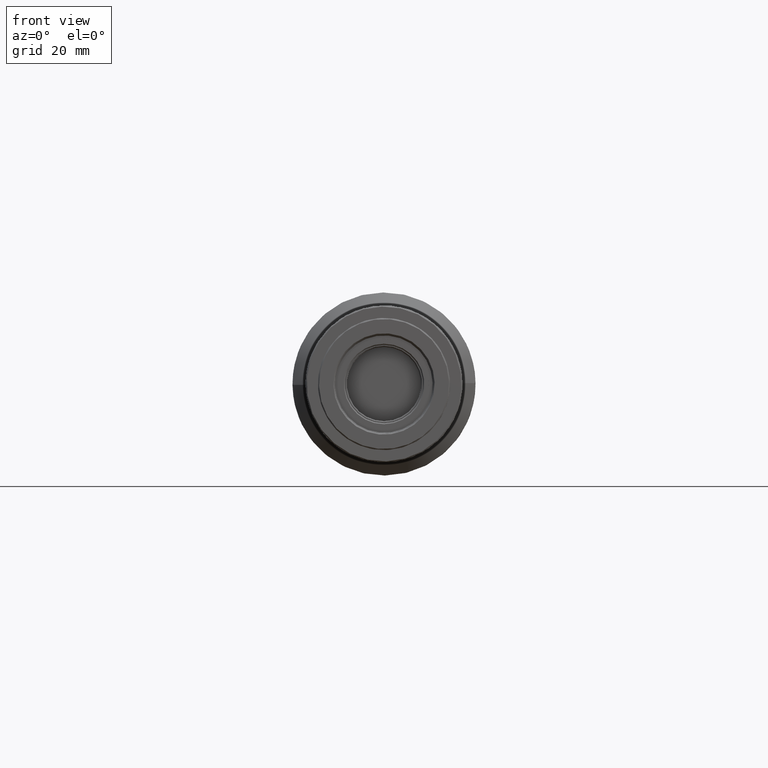
[diagram: clean part render]
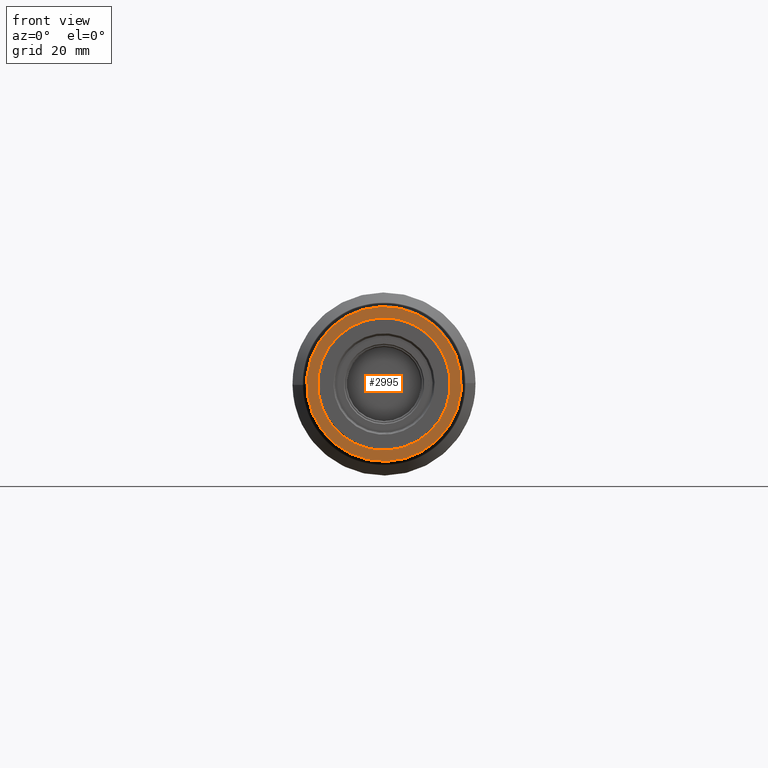
[diagram: same view with one face highlighted and labeled with its STEP entity id]
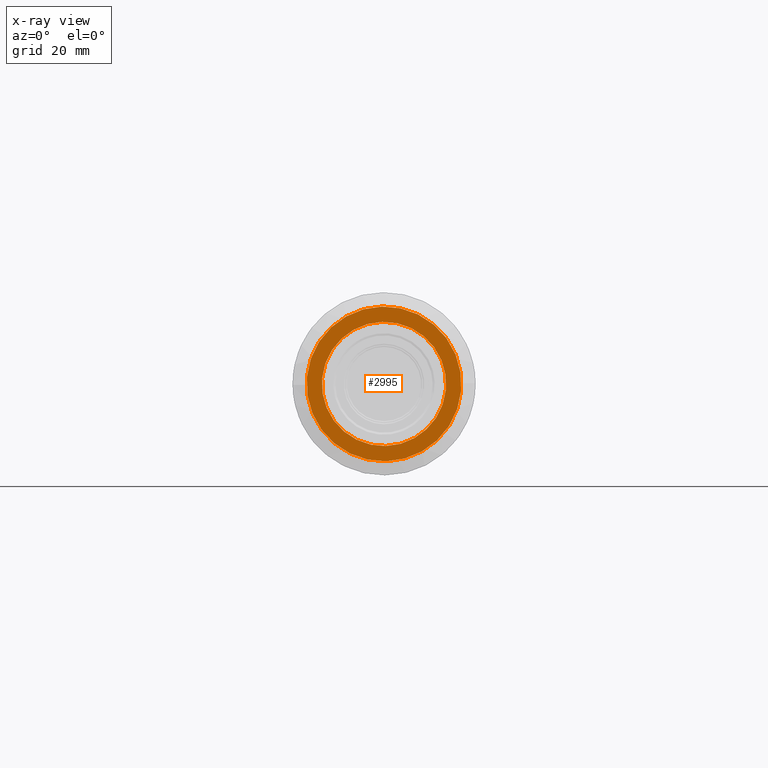
[diagram: x-ray of the same camera — body ghosted, the highlighted face saturated]
A machine part, front view. The second image highlights one B-rep face of the part: STEP entity #2995.
The next image is the same camera in x-ray: the body ghosted, the highlighted face saturated — about 0% of this face is hidden behind the body in this view.
In plain terms, the highlighted planar face has unit normal (0, -1, 0).
Its self-contained STEP definition (entity closure, byte-faithful):
#146 = EDGE_CURVE ( 'NONE', #4155, #3077, #1923, .T. ) ;
#275 = EDGE_LOOP ( 'NONE', ( #3292, #1747 ) ) ;
#300 = PLANE ( 'NONE',  #1401 ) ;
#542 = CARTESIAN_POINT ( 'NONE',  ( 2.342732911129459860E-15, -2.000000000000000000, -2.915018094392330221E-16 ) ) ;
#630 = DIRECTION ( 'NONE',  ( -0.6836430152896298962, 0.000000000000000000, 0.7298165712325959120 ) ) ;
#659 = DIRECTION ( 'NONE',  ( -0.000000000000000000, 1.000000000000000000, -0.000000000000000000 ) ) ;
#810 = EDGE_CURVE ( 'NONE', #3874, #1076, #3191, .T. ) ;
#973 = CARTESIAN_POINT ( 'NONE',  ( -8.121679021640801466, -2.000000000000001776, 8.670220866243239399 ) ) ;
#1076 = VERTEX_POINT ( 'NONE', #2997 ) ;
#1097 = CARTESIAN_POINT ( 'NONE',  ( 2.342732911129459860E-15, -2.000000000000001776, -2.915018094392330221E-16 ) ) ;
#1359 = AXIS2_PLACEMENT_3D ( 'NONE', #1849, #2744, #4483 ) ;
#1401 = AXIS2_PLACEMENT_3D ( 'NONE', #2883, #4626, #3788 ) ;
#1649 = EDGE_LOOP ( 'NONE', ( #1852, #1655 ) ) ;
#1655 = ORIENTED_EDGE ( 'NONE', *, *, #810, .F. ) ;
#1747 = ORIENTED_EDGE ( 'NONE', *, *, #146, .T. ) ;
#1849 = CARTESIAN_POINT ( 'NONE',  ( 2.342732911129459860E-15, -2.000000000000000000, -2.915018094392330221E-16 ) ) ;
#1852 = ORIENTED_EDGE ( 'NONE', *, *, #5209, .F. ) ;
#1923 = CIRCLE ( 'NONE', #2844, 11.88000000000000256 ) ;
#2283 = DIRECTION ( 'NONE',  ( -0.000000000000000000, 1.000000000000000000, 0.000000000000000000 ) ) ;
#2490 = CARTESIAN_POINT ( 'NONE',  ( 2.342732911129459860E-15, -2.000000000000001776, -2.915018094392330221E-16 ) ) ;
#2542 = CARTESIAN_POINT ( 'NONE',  ( 8.121679021640803242, -2.000000000000001776, -8.670220866243239399 ) ) ;
#2744 = DIRECTION ( 'NONE',  ( -0.000000000000000000, 1.000000000000000000, 0.000000000000000000 ) ) ;
#2844 = AXIS2_PLACEMENT_3D ( 'NONE', #1097, #659, #630 ) ;
#2883 = CARTESIAN_POINT ( 'NONE',  ( 10.25464522934445100, -2.000000000000001776, -10.94724856848893957 ) ) ;
#2896 = AXIS2_PLACEMENT_3D ( 'NONE', #542, #2283, #4024 ) ;
#2995 = ADVANCED_FACE ( 'NONE', ( #3311, #3364 ), #300, .T. ) ;
#2997 = CARTESIAN_POINT ( 'NONE',  ( 10.11791662628652588, -2.000000000000000000, -10.80128525424241914 ) ) ;
#3038 = CIRCLE ( 'NONE', #4404, 11.88000000000000256 ) ;
#3077 = VERTEX_POINT ( 'NONE', #973 ) ;
#3191 = CIRCLE ( 'NONE', #1359, 14.79999999999999893 ) ;
#3292 = ORIENTED_EDGE ( 'NONE', *, *, #3783, .T. ) ;
#3311 = FACE_BOUND ( 'NONE', #275, .T. ) ;
#3364 = FACE_OUTER_BOUND ( 'NONE', #1649, .T. ) ;
#3426 = DIRECTION ( 'NONE',  ( -0.6836430152896298962, 0.000000000000000000, 0.7298165712325959120 ) ) ;
#3783 = EDGE_CURVE ( 'NONE', #3077, #4155, #3038, .T. ) ;
#3788 = DIRECTION ( 'NONE',  ( -0.6836430152896298962, 0.000000000000000000, 0.7298165712325959120 ) ) ;
#3874 = VERTEX_POINT ( 'NONE', #3918 ) ;
#3918 = CARTESIAN_POINT ( 'NONE',  ( -10.11791662628652411, -2.000000000000000000, 10.80128525424241737 ) ) ;
#4024 = DIRECTION ( 'NONE',  ( 0.6836430152896300072, 0.000000000000000000, -0.7298165712325959120 ) ) ;
#4155 = VERTEX_POINT ( 'NONE', #2542 ) ;
#4234 = DIRECTION ( 'NONE',  ( -0.000000000000000000, 1.000000000000000000, -0.000000000000000000 ) ) ;
#4404 = AXIS2_PLACEMENT_3D ( 'NONE', #2490, #4234, #3426 ) ;
#4483 = DIRECTION ( 'NONE',  ( 0.6836430152896300072, 0.000000000000000000, -0.7298165712325959120 ) ) ;
#4626 = DIRECTION ( 'NONE',  ( 0.000000000000000000, -1.000000000000000000, 0.000000000000000000 ) ) ;
#5209 = EDGE_CURVE ( 'NONE', #1076, #3874, #5352, .T. ) ;
#5352 = CIRCLE ( 'NONE', #2896, 14.79999999999999893 ) ;